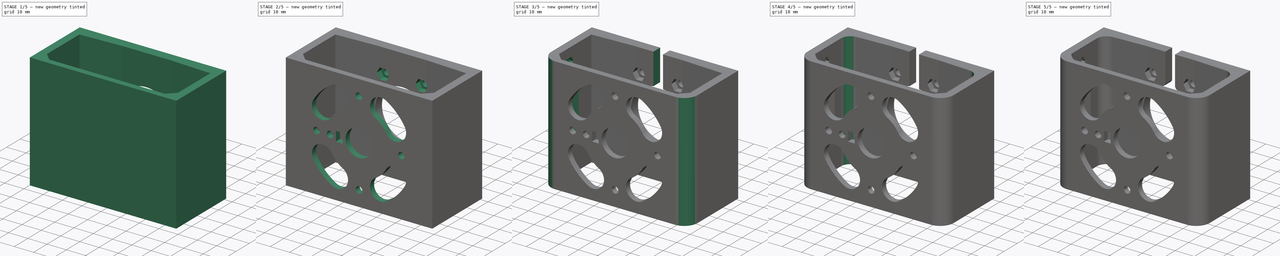
[diagram: build sequence overview — one tinted view per stage of 5, left to right]
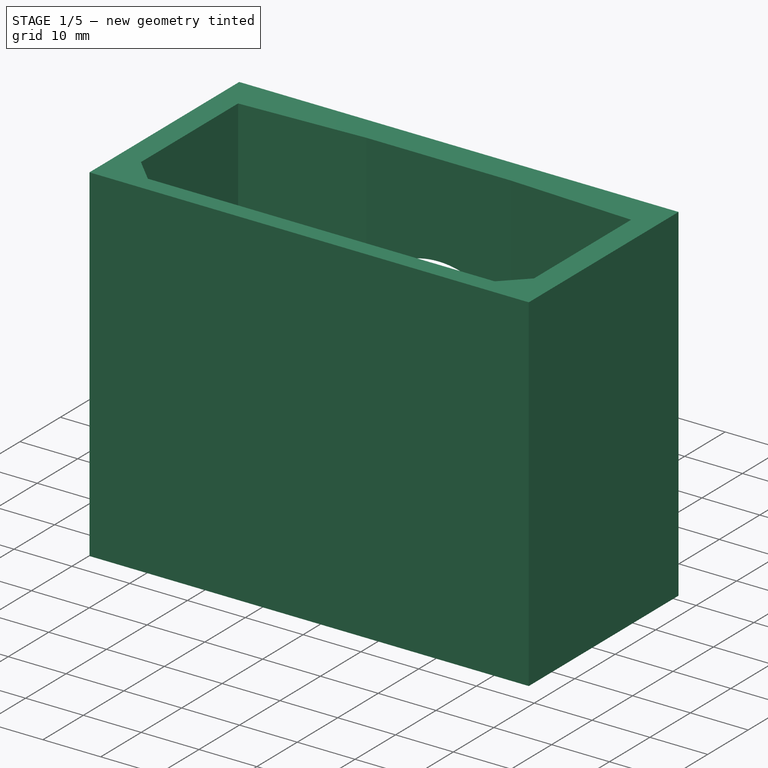
[diagram: stage 1 of 5 — iso view after this stage's code; geometry added in this stage tinted green]
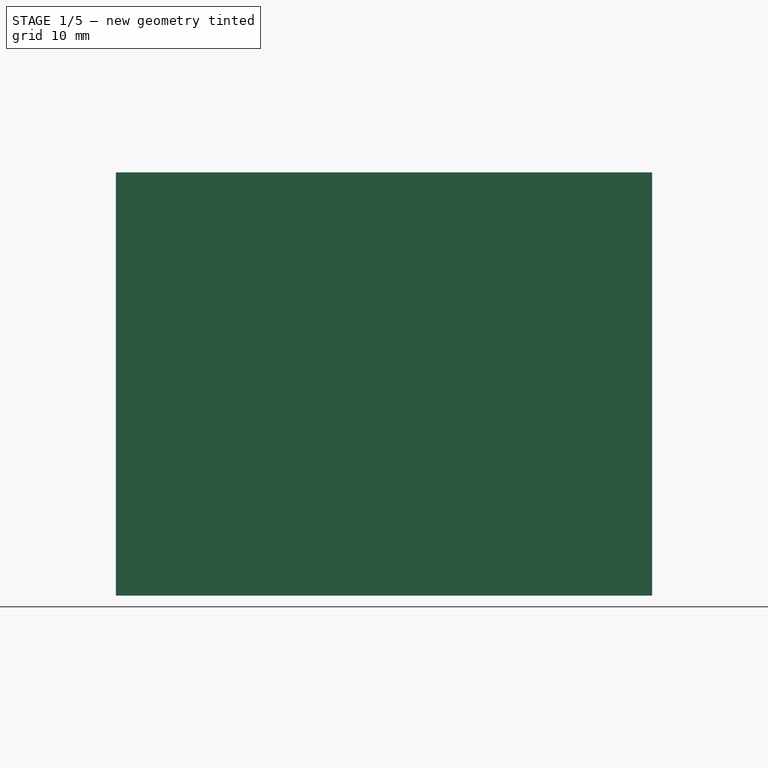
[diagram: stage 1 of 5 — front view after this stage's code; geometry added in this stage tinted green]
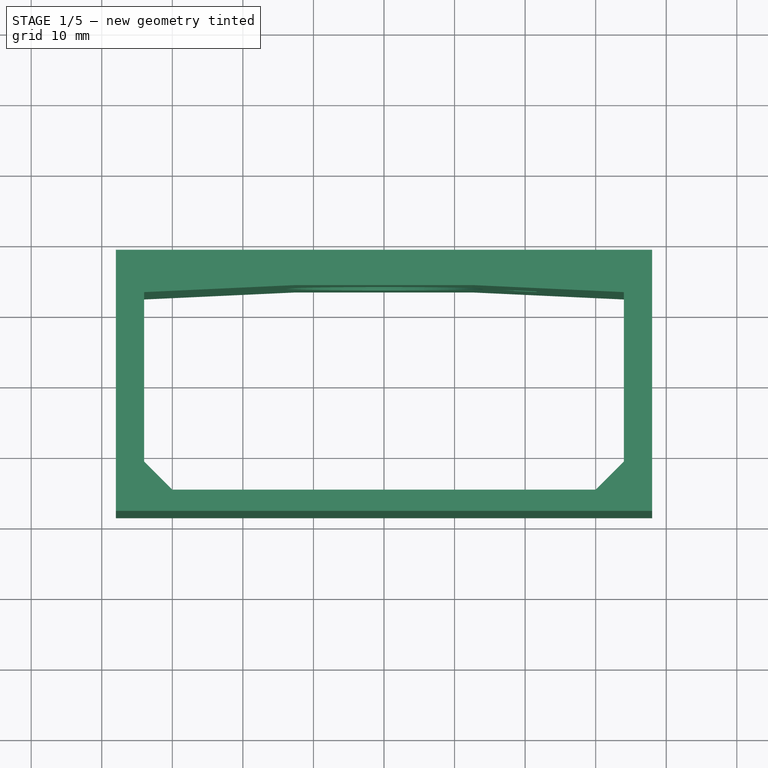
[diagram: stage 1 of 5 — top view after this stage's code; geometry added in this stage tinted green]
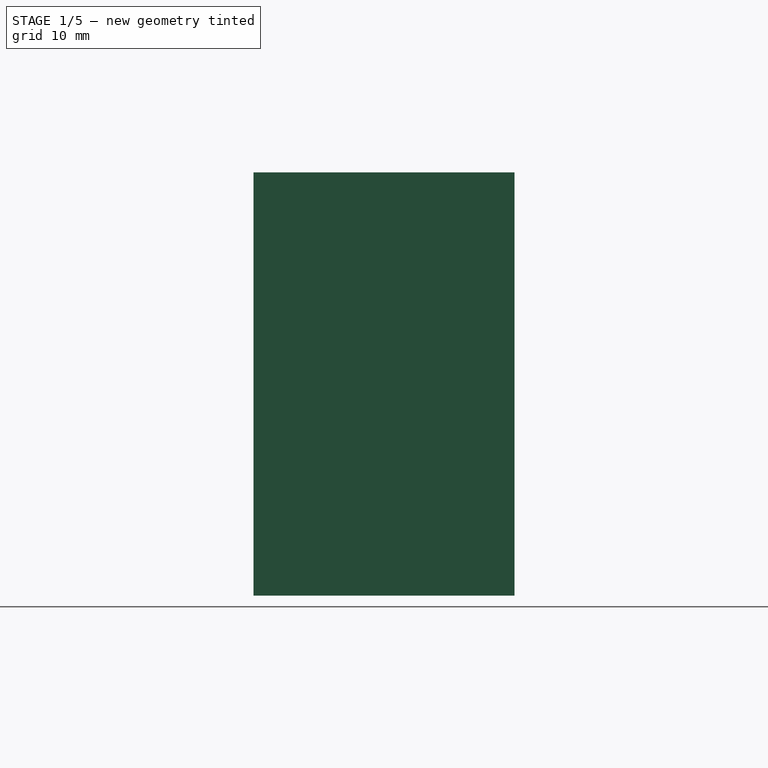
[diagram: stage 1 of 5 — right view after this stage's code; geometry added in this stage tinted green]
FCSTD DOCUMENT  (FreeCAD 0.16R6706 (Git))
Label: MotorMountMT5208V2
License: All rights reserved
LicenseURL: http://en.wikipedia.org/wiki/All_rights_reserved
objects: PartDesign::Fillet×10, Sketcher::SketchObject×9, PartDesign::Pocket×7, PartDesign::Pad×2, PartDesign::PolarPattern×2
note: 39 computed .brp shape members not serialized (recipe doc carries the construction recipe); baked Part::Feature solids carry a one-line shape summary decoded from their .brp

FEATURE [Sketcher::SketchObject] Sketch
  sketch-geometry (14):
    g0: LineSegment StartX=38 StartY=18.5 StartZ=0 EndX=38 EndY=-18.5 EndZ=0
    g1: LineSegment StartX=38 StartY=-18.5 StartZ=0 EndX=-38 EndY=-18.5 EndZ=0
    g2: LineSegment StartX=-38 StartY=-18.5 StartZ=0 EndX=-38 EndY=18.5 EndZ=0
    g3: LineSegment StartX=-34 StartY=-11.5 StartZ=0 EndX=-30 EndY=-15.5 EndZ=0
    g4: LineSegment StartX=-30 StartY=-15.5 StartZ=0 EndX=30 EndY=-15.5 EndZ=0
    g5: LineSegment StartX=30 StartY=-15.5 StartZ=0 EndX=34 EndY=-11.5 EndZ=0
    g6: LineSegment StartX=34 StartY=-11.5 StartZ=0 EndX=34 EndY=12.5 EndZ=0
    g7: LineSegment StartX=34 StartY=12.5 StartZ=0 EndX=12.5 EndY=13.5 EndZ=0
    g8: LineSegment StartX=-12.5 StartY=13.5 StartZ=0 EndX=-34 EndY=12.5 EndZ=0
    g9: LineSegment StartX=-34 StartY=12.5 StartZ=0 EndX=-34 EndY=-11.5 EndZ=0
    g10: LineSegment [constr] StartX=-34 StartY=12.5 StartZ=0 EndX=34 EndY=12.5 EndZ=0
    g11: LineSegment StartX=-12.5 StartY=13.5 StartZ=0 EndX=12.5 EndY=13.5 EndZ=0
    g12: LineSegment StartX=-38 StartY=18.5 StartZ=0 EndX=38 EndY=18.5 EndZ=0
    g13: LineSegment [constr] StartX=-34 StartY=12 StartZ=0 EndX=34 EndY=12 EndZ=0
  constraints (41):
    c: Coincident(g0,g1)
    c: Coincident(g1,g2)
    c: Horizontal(g1)
    c: Vertical(g0)
    c: Vertical(g2)
    c: Coincident(g3,g4)
    c: Horizontal(g4)
    c: Coincident(g4,g5)
    c: Coincident(g5,g6)
    c: Vertical(g6)
    c: Coincident(g6,g7)
    c: Coincident(g8,g9)
    c: Coincident(g9,g3)
    c: Vertical(g9)
    c: Symmetric(g1,g0,g-1)
    c: Symmetric(g3,g4,g-2)
    c: Symmetric(g3,g5,g-2)
    c: Symmetric(g7,g8,g-2)
    c: DistanceX(g3,g4) = 60
    c: DistanceY(g4,g5) = 4
    c: DistanceX(g3,g5) = 68
    c: DistanceY(g1,g3) = 3
    c: Coincident(g10,g8)
    c: Coincident(g10,g6)
    c: Horizontal(g10)
    c: Coincident(g11,g8)
    c: Coincident(g11,g7)
    c: DistanceX(g1,g0) = 76
    c: DistanceX(g7,g8) = -25
    c: Coincident(g12,g2)
    c: Coincident(g12,g0)
    c: Horizontal(g12)
    c: PointOnObject(g13,g9)
    c: PointOnObject(g13,g6)
    c: Horizontal(g13)
    c: DistanceY(g4,g13) = 27.5
    c: DistanceY(g13,g0) = 6.5
    c: DistanceY(g8,g2) = 5
    c: DistanceY(g3,g8) = 28
    c: DistanceY(g1,g-1) = 18.5
    c: DistanceX(g2,g-1) = 38
FEATURE [PartDesign::Pad] Pad
  Length = 60
  Length2 = 100
  Midplane = true
  Sketch = -> Sketch
  Type = 0
FEATURE [Sketcher::SketchObject] Sketch020  label="GearAppature"
  Placement = pos=(0,18.5,0) rot=(0,0.707107,0.707107;3.14159rad)
  Support = -> Pad [Face4]
  sketch-geometry (10):
    g0: LineSegment [constr] StartX=-17.5 StartY=10 StartZ=0 EndX=17.5 EndY=10 EndZ=0
    g1: LineSegment [constr] StartX=17.5 StartY=10 StartZ=0 EndX=17.5 EndY=-10 EndZ=0
    g2: LineSegment [constr] StartX=17.5 StartY=-10 StartZ=0 EndX=-17.5 EndY=-10 EndZ=0
    g3: LineSegment [constr] StartX=-17.5 StartY=-10 StartZ=0 EndX=-17.5 EndY=10 EndZ=0
    g4: Circle [constr] CenterX=-17.5 CenterY=10 CenterZ=0 NormalX=0 NormalY=0 NormalZ=1 Radius=1.7
    g5: Circle [constr] CenterX=-17.5 CenterY=-10 CenterZ=0 NormalX=0 NormalY=0 NormalZ=1 Radius=1.7
    g6: Circle [constr] CenterX=17.5 CenterY=10 CenterZ=0 NormalX=0 NormalY=0 NormalZ=1 Radius=1.7
    g7: Circle [constr] CenterX=17.5 CenterY=-10 CenterZ=0 NormalX=0 NormalY=0 NormalZ=1 Radius=1.7
    g8: Circle [constr] CenterX=0 CenterY=0 CenterZ=0 NormalX=0 NormalY=0 NormalZ=1 Radius=20.1556
    g9: Circle CenterX=0 CenterY=0 CenterZ=0 NormalX=0 NormalY=0 NormalZ=1 Radius=14
  constraints (24):
    c: Coincident(g0,g1)
    c: Coincident(g1,g2)
    c: Coincident(g2,g3)
    c: Coincident(g3,g0)
    c: Horizontal(g0)
    c: Horizontal(g2)
    c: Vertical(g1)
    c: Vertical(g3)
    c: Coincident(g4,g0)
    c: Coincident(g6,g0)
    c: Coincident(g7,g1)
    c: Radius(g7) = 1.7
    c: Equal(g7,g6)
    c: Equal(g7,g4)
    c: Equal(g7,g5)
    c: Coincident(g5,g2)
    c: PointOnObject(g0,g8)
    c: PointOnObject(g2,g8)
    c: PointOnObject(g0,g8)
    c: Coincident(g8,g-1)
    c: DistanceY(g0,g2) = -20
    c: DistanceX(g0,g0) = 35
    c: Coincident(g9,g-1)
    c: Radius(g9) = 14
FEATURE [PartDesign::Pocket] Pocket
  Length = 8
  Sketch = -> Sketch020
  Type = 0
FEATURE [Sketcher::SketchObject] Sketch026
  Placement = pos=(0,13.5,0) rot=(1,0,0;1.5708rad)
  Support = -> Pocket [Face16]
  sketch-geometry (1):
    g0: Circle CenterX=20 CenterY=0 CenterZ=0 NormalX=0 NormalY=0 NormalZ=1 Radius=1.7
  constraints (3):
    c: PointOnObject(g0,g-1)
    c: DistanceX(g-1,g0) = 20
    c: Radius(g0) = 1.7
FEATURE [PartDesign::Pad] Pad001
  Length = 2
  Length2 = 100
  Sketch = -> Sketch026
  Type = 0
FEATURE [Sketcher::SketchObject] Sketch021  label="MountingNuts"
  Placement = pos=(0,11.5,0) rot=(1,0,0;1.5708rad)
  Support = -> Pad001 [Face18]
  sketch-geometry (9):
    g0: Circle [constr] CenterX=0 CenterY=0 CenterZ=0 NormalX=0 NormalY=0 NormalZ=1 Radius=20
    g1: Circle [constr] CenterX=0 CenterY=0 CenterZ=0 NormalX=0 NormalY=0 NormalZ=1 Radius=14
    g2: LineSegment StartX=18.3834 StartY=2.8 StartZ=0 EndX=16.7668 EndY=0 EndZ=0
    g3: LineSegment StartX=16.7668 StartY=0 StartZ=0 EndX=18.3834 EndY=-2.8 EndZ=0
    g4: LineSegment StartX=18.3834 StartY=-2.8 StartZ=0 EndX=21.6166 EndY=-2.8 EndZ=0
    g5: LineSegment StartX=21.6166 StartY=-2.8 StartZ=0 EndX=23.2332 EndY=0 EndZ=0
    g6: LineSegment StartX=23.2332 StartY=0 StartZ=0 EndX=21.6166 EndY=2.8 EndZ=0
    g7: LineSegment StartX=21.6166 StartY=2.8 StartZ=0 EndX=18.3834 EndY=2.8 EndZ=0
    g8: Circle [constr] CenterX=20 CenterY=0 CenterZ=0 NormalX=0 NormalY=0 NormalZ=1 Radius=3.23316
  constraints (21):
    c: PointOnObject(g8,g0)
    c: Coincident(g0,g-1)
    c: Coincident(g1,g-1)
    c: Radius(g1) = 14
    c: Coincident(g2,g3)
    c: Coincident(g3,g4)
    c: Coincident(g4,g5)
    c: Coincident(g5,g6)
    c: Coincident(g6,g7)
    c: Coincident(g7,g2)
    c: Equal(g2, g3-g7) x5
    c: PointOnObject(g2,g8)
    c: PointOnObject(g3,g8)
    c: PointOnObject(g4,g8)
    c: PointOnObject(g5,g8)
    c: PointOnObject(g6,g8)
    c: PointOnObject(g7,g8)
    c: Horizontal(g4)
    c: PointOnObject(g8,g-1)
    c: Radius(g0) = 20
    c: DistanceY(g3,g2) = 5.6
FEATURE [PartDesign::Pocket] Pocket001
  Length = 5
  Sketch = -> Sketch021
  Type = 0
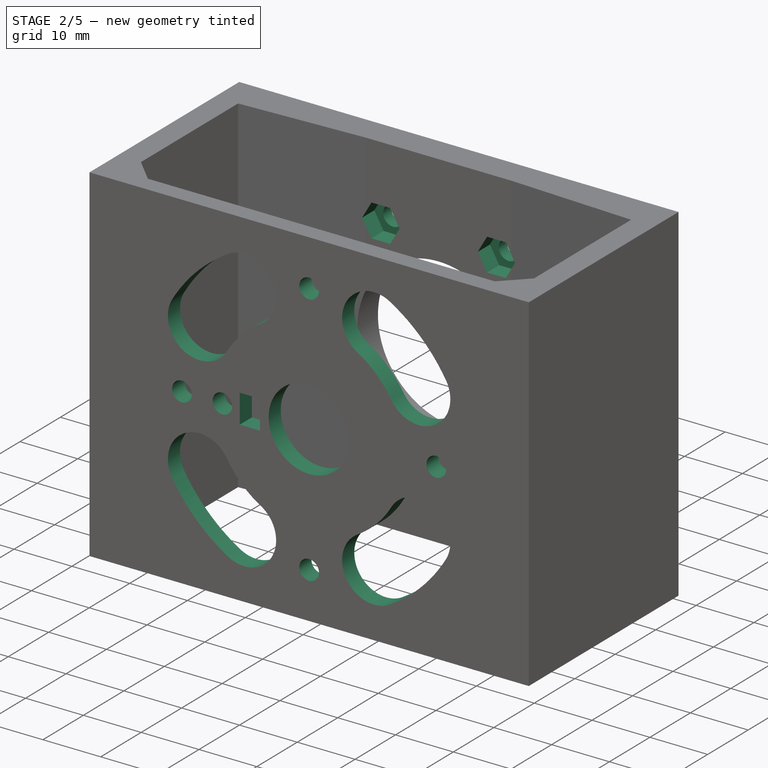
[diagram: stage 2 of 5 — iso view after this stage's code; geometry added in this stage tinted green]
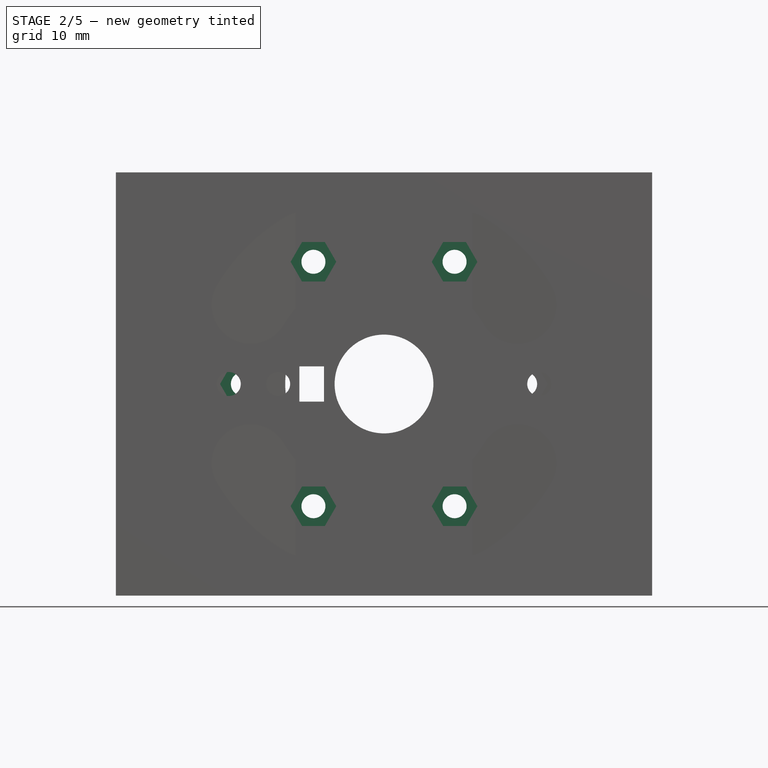
[diagram: stage 2 of 5 — front view after this stage's code; geometry added in this stage tinted green]
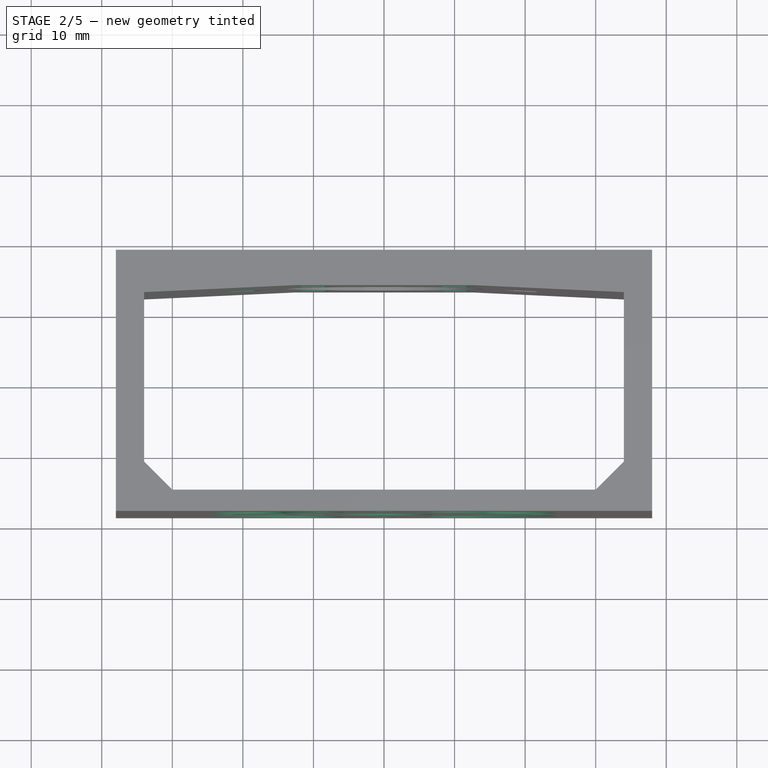
[diagram: stage 2 of 5 — top view after this stage's code; geometry added in this stage tinted green]
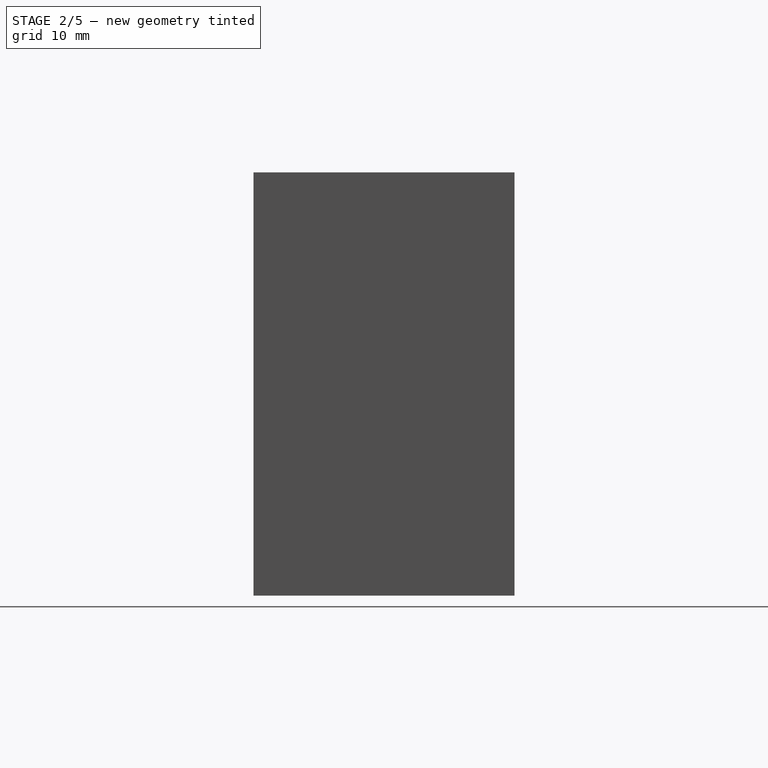
[diagram: stage 2 of 5 — right view after this stage's code; geometry added in this stage tinted green]
FEATURE [PartDesign::PolarPattern] PolarPattern
  Angle = 360
  Axis = -> Sketch021 [N_Axis]
  Occurrences = 6
  Originals = -> [Pocket001]
FEATURE [Sketcher::SketchObject] Sketch025
  Placement = pos=(0,13.5,0) rot=(1,0,0;1.5708rad)
  Support = -> PolarPattern [Face16]
  sketch-geometry (1):
    g0: Circle CenterX=20 CenterY=0 CenterZ=0 NormalX=0 NormalY=0 NormalZ=1 Radius=1.7
  constraints (3):
    c: PointOnObject(g0,g-1)
    c: Radius(g0) = 1.7
    c: DistanceX(g-1,g0) = 20
FEATURE [PartDesign::Pocket] Pocket005
  Length = 5
  Sketch = -> Sketch025
  Type = 1
FEATURE [PartDesign::PolarPattern] PolarPattern001
  Angle = 360
  Axis = -> Sketch025 [N_Axis]
  Occurrences = 6
  Originals = -> [Pocket005]
FEATURE [Sketcher::SketchObject] Sketch022  label="MotorMountScrewsAndVents"
  Placement = pos=(0,-18.5,0) rot=(1,0,0;1.5708rad)
  Support = -> PolarPattern001 [Face3]
  sketch-geometry (46):
    g0: Circle CenterX=0 CenterY=22 CenterZ=0 NormalX=0 NormalY=0 NormalZ=1 Radius=1.7
    g1: Circle CenterX=0 CenterY=-22 CenterZ=0 NormalX=0 NormalY=0 NormalZ=1 Radius=1.7
    g2: Circle CenterX=-22 CenterY=0 CenterZ=0 NormalX=0 NormalY=0 NormalZ=1 Radius=1.7
    g3: Circle CenterX=22 CenterY=0 CenterZ=0 NormalX=0 NormalY=0 NormalZ=1 Radius=1.7
    g4: Circle [constr] CenterX=-8.83883 CenterY=8.83883 CenterZ=0 NormalX=0 NormalY=0 NormalZ=1 Radius=1.7
    g5: Circle [constr] CenterX=8.83883 CenterY=8.83883 CenterZ=0 NormalX=0 NormalY=0 NormalZ=1 Radius=1.7
    g6: Circle [constr] CenterX=8.83883 CenterY=-8.83883 CenterZ=0 NormalX=0 NormalY=0 NormalZ=1 Radius=1.7
    g7: Circle [constr] CenterX=-8.83883 CenterY=-8.83883 CenterZ=0 NormalX=0 NormalY=0 NormalZ=1 Radius=1.7
    g8: Circle [constr] CenterX=0 CenterY=0 CenterZ=0 NormalX=0 NormalY=0 NormalZ=1 Radius=12.5
    g9: LineSegment [constr] StartX=-8.83883 StartY=8.83883 StartZ=0 EndX=8.83883 EndY=8.83883 EndZ=0
    g10: LineSegment [constr] StartX=8.83883 StartY=8.83883 StartZ=0 EndX=8.83883 EndY=-8.83883 EndZ=0
    g11: LineSegment [constr] StartX=8.83883 StartY=-8.83883 StartZ=0 EndX=-8.83883 EndY=-8.83883 EndZ=0
    g12: LineSegment [constr] StartX=-8.83883 StartY=-8.83883 StartZ=0 EndX=-8.83883 EndY=8.83883 EndZ=0
    g13: Circle CenterX=0 CenterY=0 CenterZ=0 NormalX=0 NormalY=0 NormalZ=1 Radius=7
    g14: Circle [constr] CenterX=0 CenterY=0 CenterZ=0 NormalX=0 NormalY=0 NormalZ=1 Radius=22
    g15: ArcOfCircle CenterX=-18.9288 CenterY=11.2116 CenterZ=0 NormalX=0 NormalY=0 NormalZ=1 Radius=5.5 StartAngle=2.60685 EndAngle=5.74844
    g16: ArcOfCircle CenterX=-11.2116 CenterY=18.9288 CenterZ=0 NormalX=0 NormalY=0 NormalZ=1 Radius=5.5 StartAngle=5.24713 EndAngle=8.38872
    g17: GeomPoint [constr] X=-15.5563 Y=15.5563 Z=0
    g18: ArcOfCircle CenterX=0 CenterY=0 CenterZ=0 NormalX=0 NormalY=0 NormalZ=1 Radius=27.5 StartAngle=2.10554 EndAngle=2.60685
    g19: ArcOfCircle CenterX=0 CenterY=0 CenterZ=0 NormalX=0 NormalY=0 NormalZ=1 Radius=16.5 StartAngle=2.10554 EndAngle=2.60685
    g20: LineSegment [constr] StartX=0 StartY=0 StartZ=0 EndX=-14.0145 EndY=23.661 EndZ=0
    g21: LineSegment [constr] StartX=0 StartY=0 StartZ=0 EndX=-23.661 EndY=14.0145 EndZ=0
    g22: LineSegment [constr] StartX=0 StartY=0 StartZ=0 EndX=-15.5563 EndY=15.5563 EndZ=0
    g23: LineSegment [constr] StartX=0 StartY=0 StartZ=0 EndX=23.661 EndY=-14.0145 EndZ=0
    g24: ArcOfCircle CenterX=0 CenterY=0 CenterZ=0 NormalX=0 NormalY=0 NormalZ=1 Radius=16.5 StartAngle=5.24713 EndAngle=5.74844
    g25: ArcOfCircle CenterX=11.2116 CenterY=-18.9288 CenterZ=0 NormalX=0 NormalY=0 NormalZ=1 Radius=5.5 StartAngle=2.10554 EndAngle=5.24713
    g26: ArcOfCircle CenterX=0 CenterY=0 CenterZ=0 NormalX=0 NormalY=0 NormalZ=1 Radius=27.5 StartAngle=5.24713 EndAngle=5.74844
    g27: ArcOfCircle CenterX=18.9288 CenterY=-11.2116 CenterZ=0 NormalX=0 NormalY=0 NormalZ=1 Radius=5.5 StartAngle=5.74844 EndAngle=8.89004
    g28: LineSegment [constr] StartX=0 StartY=0 StartZ=0 EndX=14.0145 EndY=-23.661 EndZ=0
    g29: LineSegment [constr] StartX=0 StartY=0 StartZ=0 EndX=23.661 EndY=14.0145 EndZ=0
    g30: LineSegment [constr] StartX=0 StartY=0 StartZ=0 EndX=14.0145 EndY=23.661 EndZ=0
    g31: ArcOfCircle CenterX=0 CenterY=0 CenterZ=0 NormalX=0 NormalY=0 NormalZ=1 Radius=27.5 StartAngle=0.534743 EndAngle=1.03605
    g32: ArcOfCircle CenterX=18.9288 CenterY=11.2116 CenterZ=0 NormalX=0 NormalY=0 NormalZ=1 Radius=5.5 StartAngle=3.67634 EndAngle=6.81793
    g33: ArcOfCircle CenterX=0 CenterY=0 CenterZ=0 NormalX=0 NormalY=0 NormalZ=1 Radius=16.5 StartAngle=0.534743 EndAngle=1.03605
    g34: ArcOfCircle CenterX=11.2116 CenterY=18.9288 CenterZ=0 NormalX=0 NormalY=0 NormalZ=1 Radius=5.5 StartAngle=1.03605 EndAngle=4.17765
    g35: ArcOfCircle CenterX=-11.2116 CenterY=-18.9288 CenterZ=0 NormalX=0 NormalY=0 NormalZ=1 Radius=5.5 StartAngle=4.17765 EndAngle=7.31924
    g36: LineSegment [constr] StartX=0 StartY=0 StartZ=0 EndX=-14.0145 EndY=-23.661 EndZ=0
    g37: ArcOfCircle CenterX=0 CenterY=0 CenterZ=0 NormalX=0 NormalY=0 NormalZ=1 Radius=27.5 StartAngle=3.67634 EndAngle=4.17765
    g38: ArcOfCircle CenterX=0 CenterY=0 CenterZ=0 NormalX=0 NormalY=0 NormalZ=1 Radius=16.5 StartAngle=3.67634 EndAngle=4.17765
    g39: ArcOfCircle CenterX=-18.9288 CenterY=-11.2116 CenterZ=0 NormalX=0 NormalY=0 NormalZ=1 Radius=5.5 StartAngle=0.534743 EndAngle=3.67634
    g40: LineSegment [constr] StartX=0 StartY=0 StartZ=0 EndX=-23.661 EndY=-14.0145 EndZ=0
    g41: Circle CenterX=-15 CenterY=0 CenterZ=0 NormalX=0 NormalY=0 NormalZ=1 Radius=1.7
    g42: LineSegment StartX=-12 StartY=2.5 StartZ=0 EndX=-8.5 EndY=2.5 EndZ=0
    g43: LineSegment StartX=-8.5 StartY=2.5 StartZ=0 EndX=-8.5 EndY=-2.5 EndZ=0
    g44: LineSegment StartX=-8.5 StartY=-2.5 StartZ=0 EndX=-12 EndY=-2.5 EndZ=0
    g45: LineSegment StartX=-12 StartY=-2.5 StartZ=0 EndX=-12 EndY=2.5 EndZ=0
  constraints (133):
    c: PointOnObject(g1,g-2)
    c: PointOnObject(g2,g-1)
    c: PointOnObject(g3,g-1)
    c: Symmetric(g2,g3,g-1)
    c: Symmetric(g1,g0,g-1)
    c: Radius(g2) = 1.7
    c: Equal(g2,g1)
    c: Equal(g2,g3)
    c: Equal(g2,g0)
    c: Radius(g4) = 1.7
    c: Equal(g4,g7)
    c: Equal(g4,g6)
    c: Equal(g4,g5)
    c: Coincident(g8,g-1)
    c: Radius(g8) = 12.5
    c: PointOnObject(g6,g8)
    c: PointOnObject(g7,g8)
    c: PointOnObject(g5,g8)
    c: PointOnObject(g4,g8)
    c: Coincident(g9,g4)
    c: Coincident(g9,g5)
    c: Coincident(g10,g5)
    c: Coincident(g10,g6)
    c: Vertical(g10)
    c: Coincident(g11,g6)
    c: Coincident(g11,g7)
    c: Coincident(g12,g7)
    c: Coincident(g12,g4)
    c: Horizontal(g11)
    c: Vertical(g12)
    c: Coincident(g13,g-1)
    c: Radius(g13) = 7
    c: Coincident(g14,g-1)
    c: Radius(g14) = 22
    c: PointOnObject(g0,g14)
    c: PointOnObject(g2,g14)
    c: Equal(g12,g9)
    c: PointOnObject(g16,g14)
    c: Radius(g15) = 5.5
    c: PointOnObject(g17,g14)
    c: PointOnObject(g17,g16)
    c: PointOnObject(g17,g15)
    c: Coincident(g18,g-1)
    c: Coincident(g19,g-1)
    c: Coincident(g16,g18)
    c: Coincident(g15,g19)
    c: Coincident(g16,g19)
    c: Coincident(g18,g15)
    c: Coincident(g15,g19)
    c: Coincident(g20,g-1)
    c: Coincident(g20,g16)
    c: Coincident(g21,g-1)
    c: PointOnObject(g15,g21)
    c: PointOnObject(g15,g21)
    c: PointOnObject(g16,g20)
    c: PointOnObject(g16,g20)
    c: Coincident(g21,g15)
    c: Coincident(g22,g-1)
    c: Coincident(g22,g17)
    c: PointOnObject(g4,g22)
    c: Radius(g27) = 5.5
    c: Equal(g27,g25)
    c: Coincident(g25,g26)
    c: Coincident(g27,g24)
    c: Coincident(g25,g24)
    c: Coincident(g26,g27)
    c: Coincident(g27,g24)
    c: Coincident(g28,g25)
    c: PointOnObject(g27,g23)
    c: PointOnObject(g27,g23)
    c: PointOnObject(g25,g28)
    c: PointOnObject(g25,g28)
    c: Coincident(g23,g27)
    c: Coincident(g26,g24)
    c: Coincident(g26,g28)
    c: Coincident(g26,g23)
    c: Coincident(g26,g-1)
    c: PointOnObject(g25,g14)
    c: Parallel(g20,g28)
    c: Parallel(g21,g23)
    c: Radius(g32) = 5.5
    c: Coincident(g34,g31)
    c: Coincident(g32,g33)
    c: Coincident(g34,g33)
    c: Coincident(g31,g32)
    c: Coincident(g32,g33)
    c: Coincident(g30,g34)
    c: PointOnObject(g32,g29)
    c: PointOnObject(g32,g29)
    c: PointOnObject(g34,g30)
    c: PointOnObject(g34,g30)
    c: Coincident(g29,g32)
    c: Coincident(g29,g33)
    c: Coincident(g29,g31)
    c: Coincident(g29,g30)
    c: Coincident(g29,g-1)
    c: PointOnObject(g34,g14)
    c: Radius(g39) = 5.5
    c: Coincident(g35,g37)
    c: Coincident(g39,g38)
    c: Coincident(g35,g38)
    c: Coincident(g37,g39)
    c: Coincident(g39,g38)
    c: Coincident(g36,g35)
    c: PointOnObject(g39,g40)
    c: PointOnObject(g39,g40)
    c: PointOnObject(g35,g36)
    c: PointOnObject(g35,g36)
    c: Coincident(g40,g39)
    c: Coincident(g40,g38)
    c: Coincident(g40,g37)
    c: Coincident(g40,g36)
    c: Parallel(g36,g30)
    c: Parallel(g29,g40)
    c: Coincident(g36,g-1)
    c: PointOnObject(g39,g14)
    c: Symmetric(g39,g15,g-1)
    c: Symmetric(g35,g25,g-2)
    c: PointOnObject(g41,g-1)
    c: Equal(g41,g2)
    c: DistanceX(g2,g41) = 7
    c: Coincident(g42,g43)
    c: Coincident(g43,g44)
    c: Coincident(g44,g45)
    c: Coincident(g45,g42)
    c: Horizontal(g42)
    c: Horizontal(g44)
    c: Vertical(g43)
    c: Vertical(g45)
    c: DistanceX(g42,g42) = 3.5
    c: DistanceY(g43,g42) = 5
    c: Symmetric(g44,g42,g-1)
    c: DistanceX(g41,g42) = 3
FEATURE [PartDesign::Pocket] Pocket002
  Length = 5
  Sketch = -> Sketch022
  Type = 0
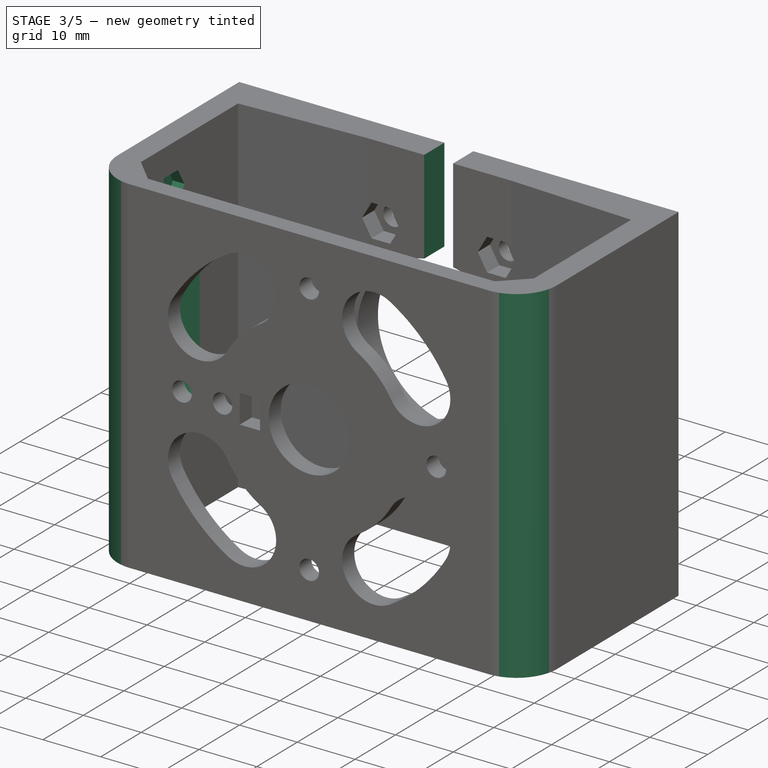
[diagram: stage 3 of 5 — iso view after this stage's code; geometry added in this stage tinted green]
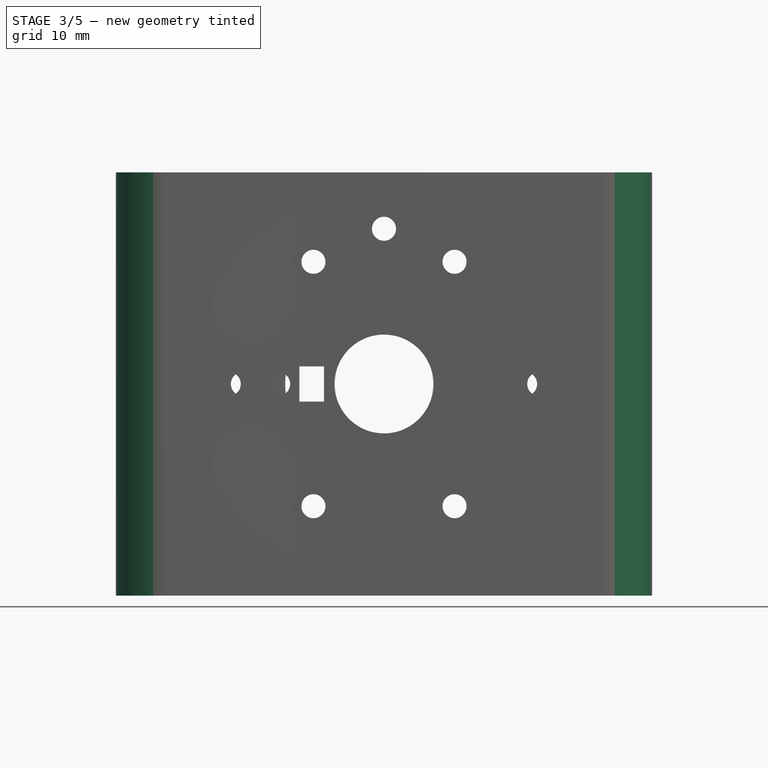
[diagram: stage 3 of 5 — front view after this stage's code; geometry added in this stage tinted green]
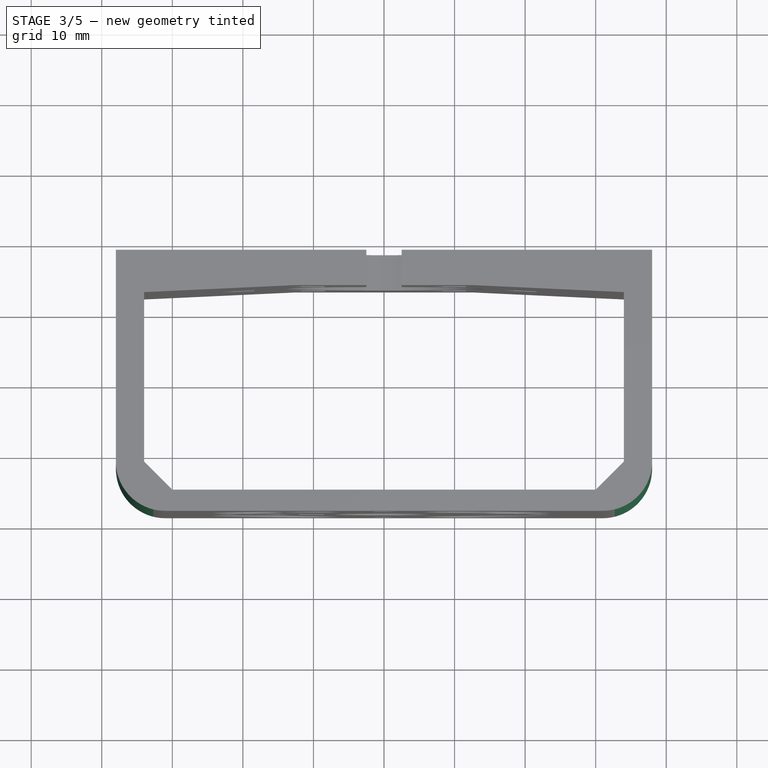
[diagram: stage 3 of 5 — top view after this stage's code; geometry added in this stage tinted green]
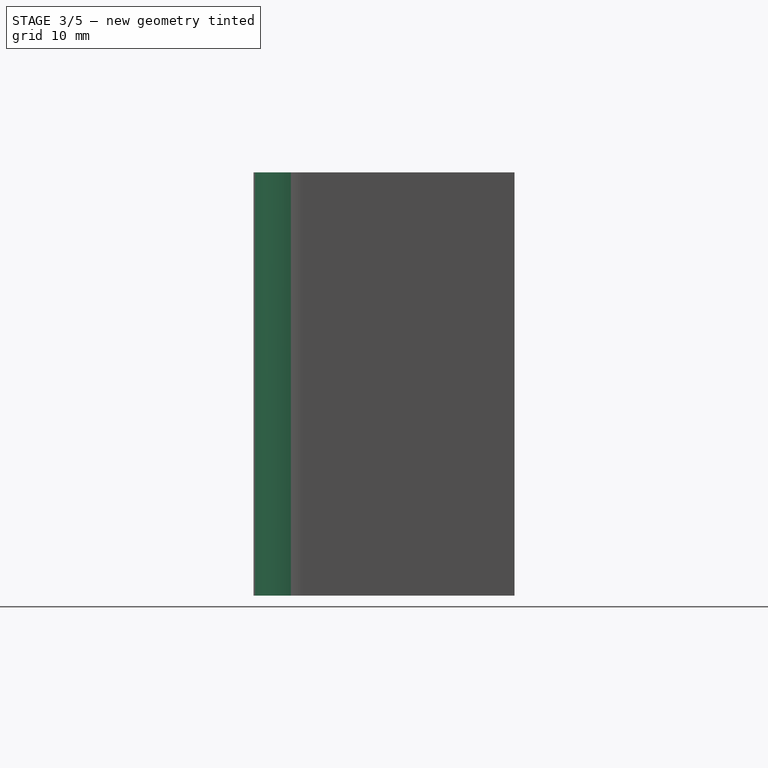
[diagram: stage 3 of 5 — right view after this stage's code; geometry added in this stage tinted green]
FEATURE [Sketcher::SketchObject] Sketch027  label="SlotForShaft"
  Placement = pos=(0,13.5,0) rot=(1,0,0;1.5708rad)
  Support = -> Pocket002 [Face47]
  sketch-geometry (4):
    g0: LineSegment StartX=-2.5 StartY=30 StartZ=0 EndX=2.5 EndY=30 EndZ=0
    g1: LineSegment StartX=2.5 StartY=30 StartZ=0 EndX=2.5 EndY=0 EndZ=0
    g2: LineSegment StartX=2.5 StartY=0 StartZ=0 EndX=-2.5 EndY=0 EndZ=0
    g3: LineSegment StartX=-2.5 StartY=0 StartZ=0 EndX=-2.5 EndY=30 EndZ=0
  constraints (12):
    c: Coincident(g0,g1)
    c: Coincident(g1,g2)
    c: Coincident(g2,g3)
    c: Coincident(g3,g0)
    c: Horizontal(g0)
    c: Horizontal(g2)
    c: Vertical(g1)
    c: Vertical(g3)
    c: Symmetric(g1,g2,g-2)
    c: PointOnObject(g2,g-1)
    c: DistanceY(g1,g0) = 30
    c: DistanceX(g0,g0) = 5
FEATURE [PartDesign::Pocket] Pocket006
  Length = 5
  Sketch = -> Sketch027
  Type = 1
FEATURE [Sketcher::SketchObject] Sketch028  label="HallSensorWindow"
  Placement = pos=(-38,0,0) rot=(0.57735,-0.57735,-0.57735;2.0944rad)
  Support = -> Pocket006 [Face10]
  sketch-geometry (8):
    g0: ArcOfCircle CenterX=4 CenterY=10 CenterZ=0 NormalX=0 NormalY=0 NormalZ=1 Radius=7 StartAngle=0 EndAngle=3.14159
    g1: ArcOfCircle CenterX=4 CenterY=-10 CenterZ=0 NormalX=0 NormalY=0 NormalZ=1 Radius=7 StartAngle=3.14159 EndAngle=6.28319
    g2: LineSegment StartX=-3 StartY=10 StartZ=0 EndX=-3 EndY=-10 EndZ=0
    g3: LineSegment StartX=11 StartY=10 StartZ=0 EndX=11 EndY=-10 EndZ=0
    g4: LineSegment [constr] StartX=4 StartY=10 StartZ=0 EndX=4 EndY=0 EndZ=0
    g5: Circle CenterX=4 CenterY=22.5 CenterZ=0 NormalX=0 NormalY=0 NormalZ=1 Radius=1.6
    g6: Circle CenterX=4 CenterY=-22.5 CenterZ=0 NormalX=0 NormalY=0 NormalZ=1 Radius=1.6
    g7: LineSegment [constr] StartX=4 StartY=22.5 StartZ=0 EndX=4 EndY=-22.5 EndZ=0
  constraints (22):
    c: Tangent(g0,g3) = 1.5708
    c: Tangent(g0,g2) = -1.5708
    c: Tangent(g2,g1) = -1.5708
    c: Tangent(g3,g1) = 1.5708
    c: Vertical(g2)
    c: Equal(g0,g1)
    c: Symmetric(g1,g0,g-1)
    c: DistanceY(g1,g0) = 20
    c: DistanceX(g1,g1) = 14
    c: Coincident(g4,g0)
    c: Vertical(g4)
    c: PointOnObject(g4,g-1)
    c: DistanceX(g-1,g4) = 4
    c: Coincident(g7,g5)
    c: Coincident(g7,g6)
    c: Vertical(g7)
    c: PointOnObject(g1,g7)
    c: Symmetric(g5,g6,g-1)
    c: Radius(g6) = 1.6
    c: Equal(g6,g5)
    c: DistanceY(g6,g5) = 45
    c: DistanceX(g-1,g4) = 4
FEATURE [PartDesign::Pocket] Pocket007
  Length = 5
  Sketch = -> Sketch028
  Type = 0
FEATURE [Sketcher::SketchObject] Sketch029
  Placement = pos=(-34,0,0) rot=(0.57735,0.57735,0.57735;2.0944rad)
  Support = -> Pocket007 [Face44]
  sketch-geometry (15):
    g0: LineSegment StartX=-2.38342 StartY=19.7 StartZ=0 EndX=-0.766838 EndY=22.5 EndZ=0
    g1: LineSegment StartX=-0.766838 StartY=22.5 StartZ=0 EndX=-2.38342 EndY=25.3 EndZ=0
    g2: LineSegment StartX=-2.38342 StartY=25.3 StartZ=0 EndX=-5.61658 EndY=25.3 EndZ=0
    g3: LineSegment StartX=-5.61658 StartY=25.3 StartZ=0 EndX=-7.23316 EndY=22.5 EndZ=0
    g4: LineSegment StartX=-7.23316 StartY=22.5 StartZ=0 EndX=-5.61658 EndY=19.7 EndZ=0
    g5: LineSegment StartX=-5.61658 StartY=19.7 StartZ=0 EndX=-2.38342 EndY=19.7 EndZ=0
    g6: Circle [constr] CenterX=-4 CenterY=22.5 CenterZ=0 NormalX=0 NormalY=0 NormalZ=1 Radius=3.23316
    g7: LineSegment [constr] StartX=-4 StartY=22.5 StartZ=0 EndX=-4 EndY=-22.5 EndZ=0
    g8: LineSegment StartX=-7.23316 StartY=-22.5 StartZ=0 EndX=-5.61658 EndY=-25.3 EndZ=0
    g9: LineSegment StartX=-5.61658 StartY=-25.3 StartZ=0 EndX=-2.38342 EndY=-25.3 EndZ=0
    g10: LineSegment StartX=-2.38342 StartY=-25.3 StartZ=0 EndX=-0.766838 EndY=-22.5 EndZ=0
    g11: LineSegment StartX=-0.766838 StartY=-22.5 StartZ=0 EndX=-2.38342 EndY=-19.7 EndZ=0
    g12: LineSegment StartX=-2.38342 StartY=-19.7 StartZ=0 EndX=-5.61658 EndY=-19.7 EndZ=0
    g13: LineSegment StartX=-5.61658 StartY=-19.7 StartZ=0 EndX=-7.23316 EndY=-22.5 EndZ=0
    g14: Circle [constr] CenterX=-4 CenterY=-22.5 CenterZ=0 NormalX=0 NormalY=0 NormalZ=1 Radius=3.23316
  constraints (36):
    c: Coincident(g0,g1)
    c: Coincident(g1,g2)
    c: Coincident(g2,g3)
    c: Coincident(g3,g4)
    c: Coincident(g4,g5)
    c: Coincident(g5,g0)
    c: Equal(g0, g1-g5) x5
    c: PointOnObject(g0,g6)
    c: PointOnObject(g1,g6)
    c: PointOnObject(g2,g6)
    c: PointOnObject(g3,g6)
    c: PointOnObject(g4,g6)
    c: PointOnObject(g5,g6)
    c: Coincident(g7,g6)
    c: Vertical(g7)
    c: Horizontal(g5)
    c: DistanceY(g0,g1) = 5.6
    c: Coincident(g8,g9)
    c: Coincident(g9,g10)
    c: Coincident(g10,g11)
    c: Coincident(g11,g12)
    c: Coincident(g12,g13)
    c: Coincident(g13,g8)
    c: Equal(g8, g9-g13) x5
    c: PointOnObject(g8,g14)
    c: PointOnObject(g9,g14)
    c: PointOnObject(g10,g14)
    c: PointOnObject(g11,g14)
    c: PointOnObject(g12,g14)
    c: PointOnObject(g13,g14)
    c: Coincident(g14,g7)
    c: Horizontal(g12)
    c: DistanceY(g8,g12) = 5.6
    c: Symmetric(g7,g6,g-1)
    c: DistanceY(g7,g7) = 45
    c: DistanceX(g6,g-1) = 4
FEATURE [PartDesign::Pocket] Pocket008
  Length = 2
  Sketch = -> Sketch029
  Type = 0
FEATURE [PartDesign::Fillet] Fillet
  Base = -> Pocket008 [Edge21]
  Radius = 7
FEATURE [PartDesign::Fillet] Fillet001
  Base = -> Fillet [Edge3]
  Radius = 7
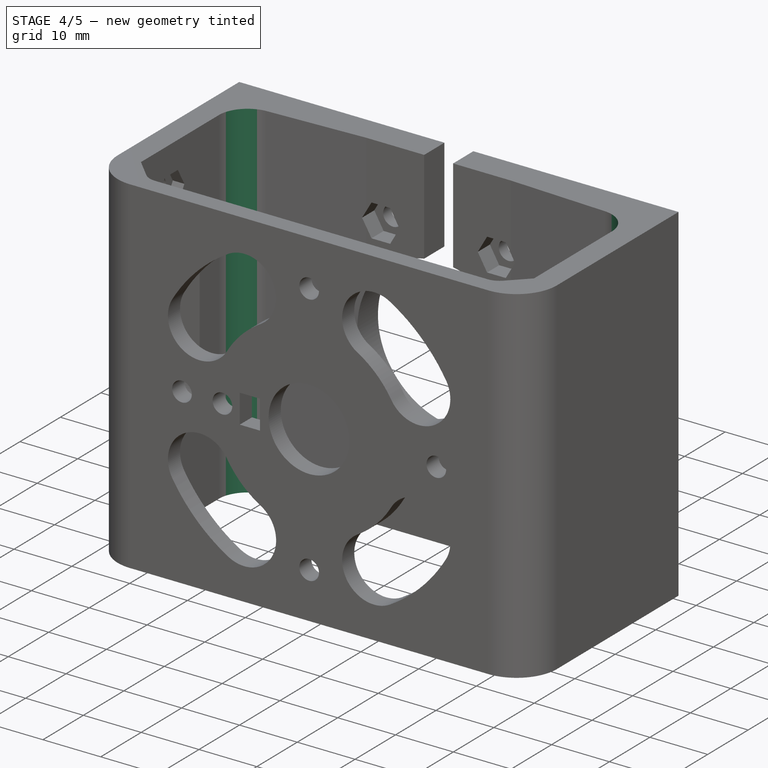
[diagram: stage 4 of 5 — iso view after this stage's code; geometry added in this stage tinted green]
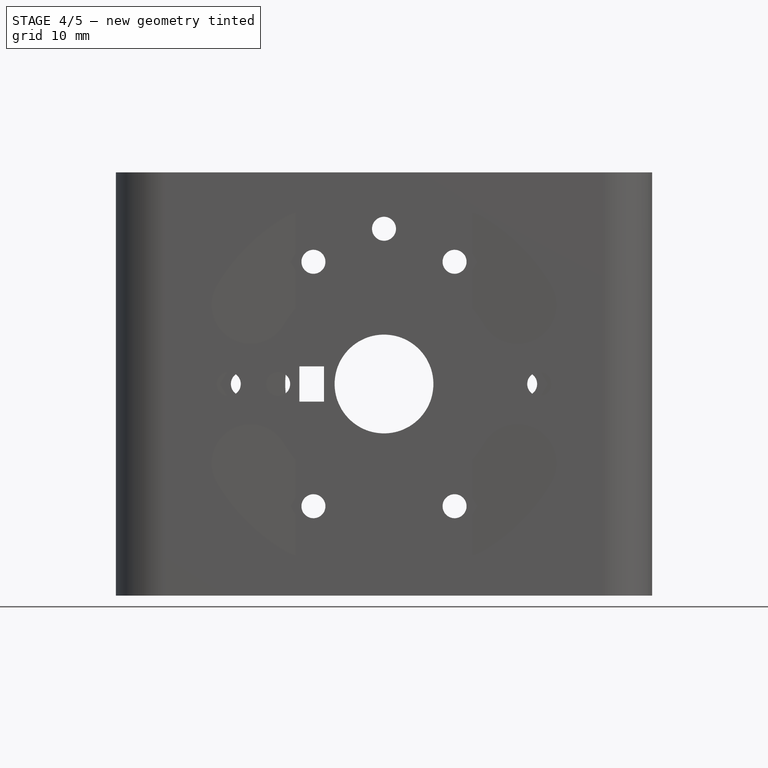
[diagram: stage 4 of 5 — front view after this stage's code; geometry added in this stage tinted green]
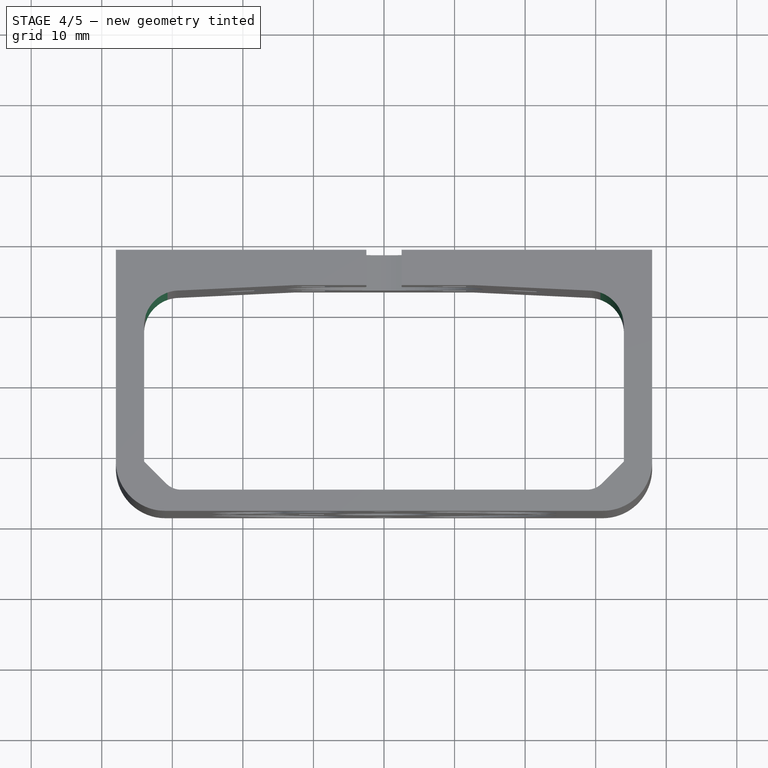
[diagram: stage 4 of 5 — top view after this stage's code; geometry added in this stage tinted green]
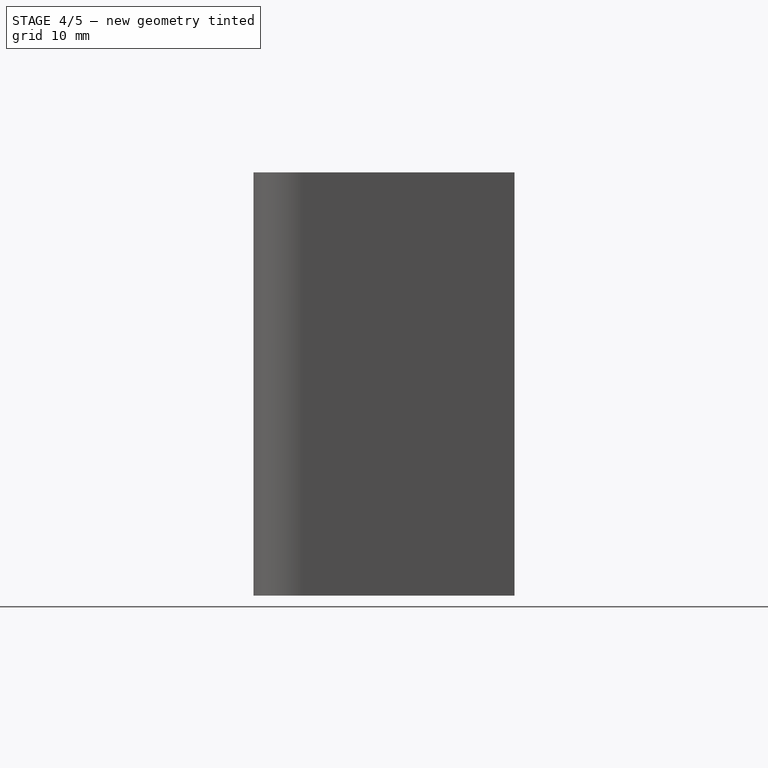
[diagram: stage 4 of 5 — right view after this stage's code; geometry added in this stage tinted green]
FEATURE [PartDesign::Fillet] Fillet002
  Base = -> Fillet001 [Edge133]
  Radius = 5
FEATURE [PartDesign::Fillet] Fillet003
  Base = -> Fillet002 [Edge77]
  Radius = 5
FEATURE [PartDesign::Fillet] Fillet004
  Base = -> Fillet003 [Edge73]
  Radius = 3
FEATURE [PartDesign::Fillet] Fillet005
  Base = -> Fillet004 [Edge19]
  Radius = 3
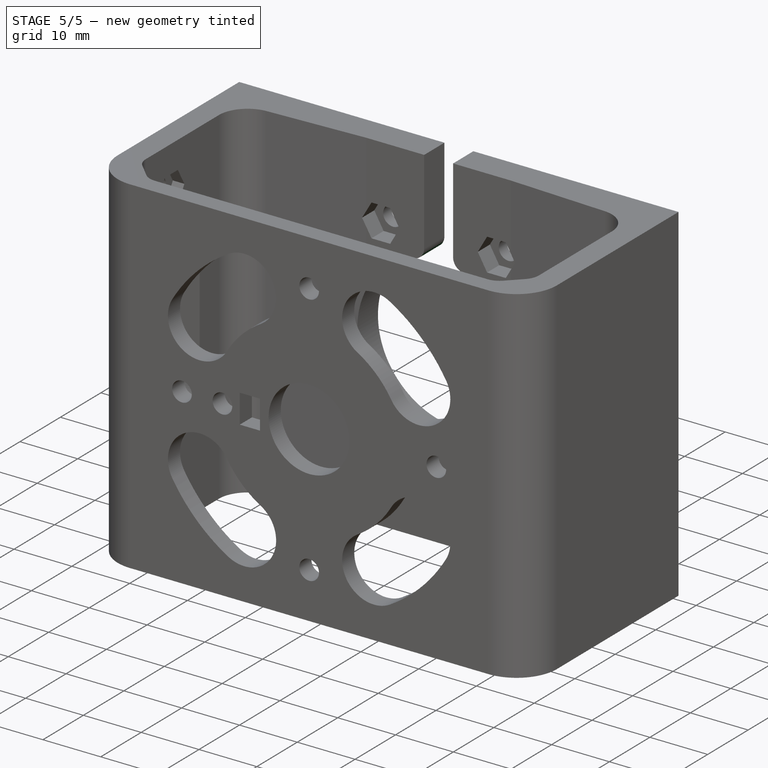
[diagram: stage 5 of 5 — iso view after this stage's code; geometry added in this stage tinted green]
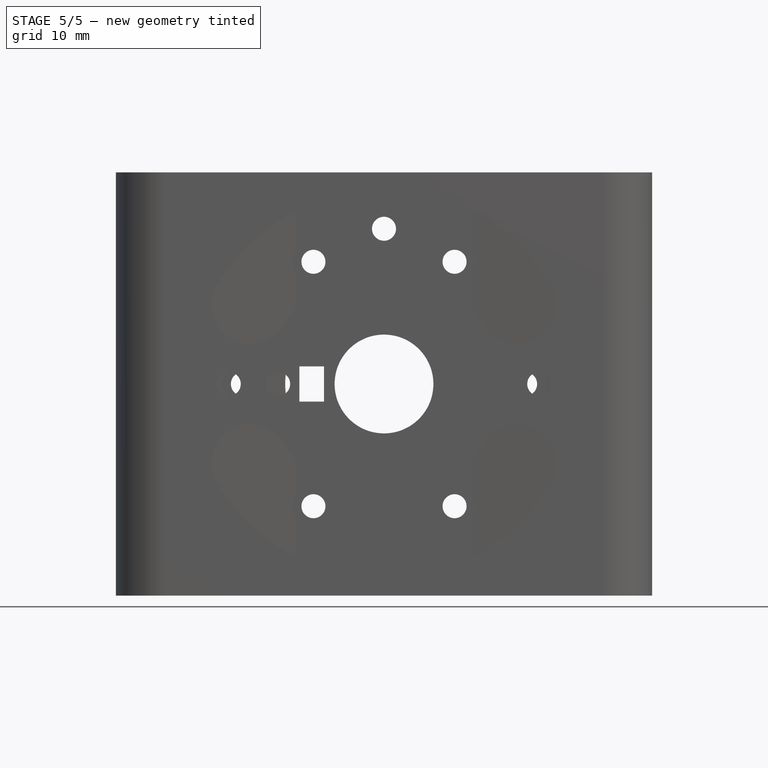
[diagram: stage 5 of 5 — front view after this stage's code; geometry added in this stage tinted green]
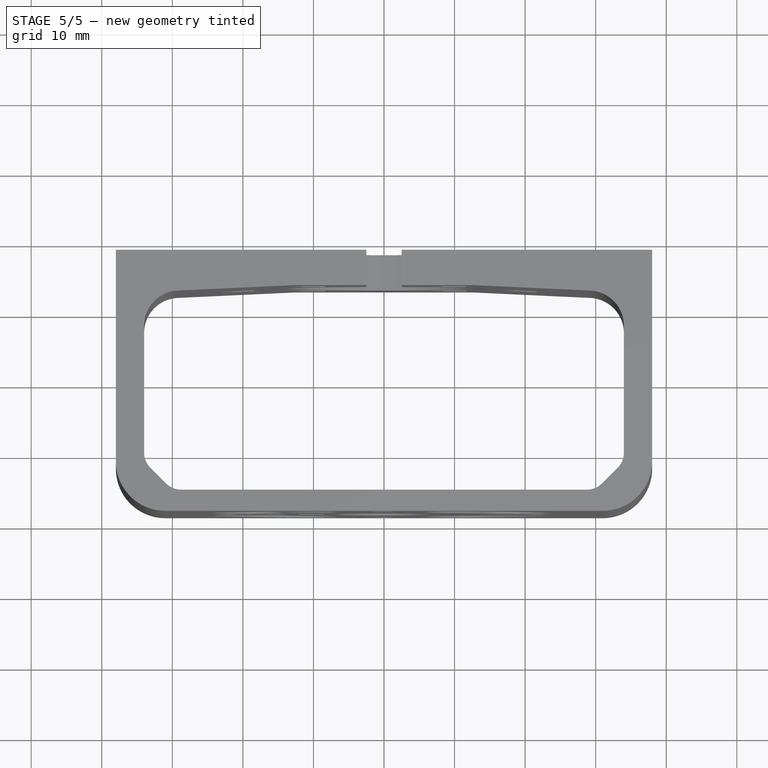
[diagram: stage 5 of 5 — top view after this stage's code; geometry added in this stage tinted green]
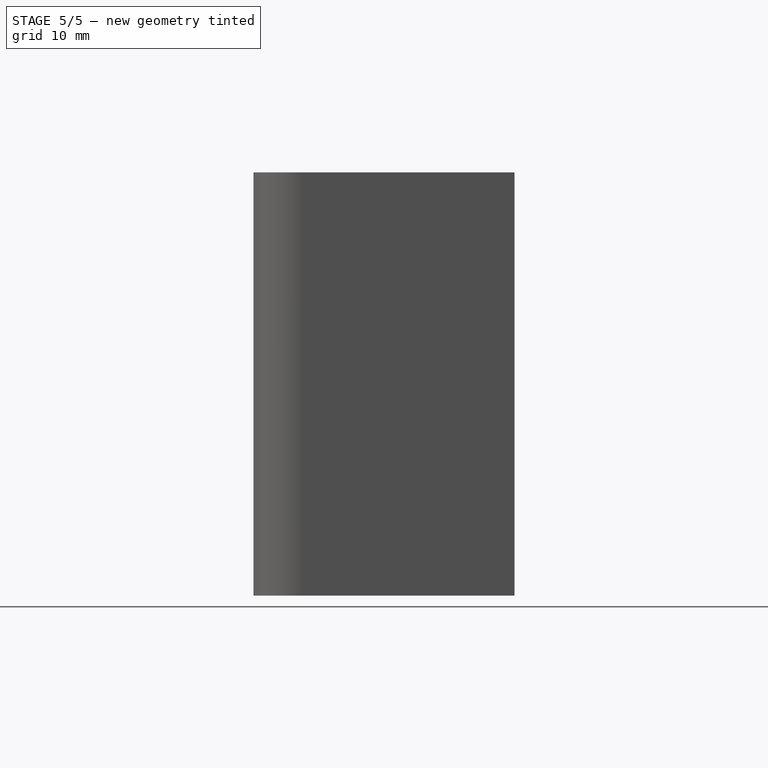
[diagram: stage 5 of 5 — right view after this stage's code; geometry added in this stage tinted green]
FEATURE [PartDesign::Fillet] Fillet006
  Base = -> Fillet005 [Edge52]
  Radius = 3
FEATURE [PartDesign::Fillet] Fillet007
  Base = -> Fillet006 [Edge77]
  Radius = 3
FEATURE [PartDesign::Fillet] Fillet008
  Base = -> Fillet007 [Edge277]
  Radius = 2
FEATURE [PartDesign::Fillet] Fillet009
  Base = -> Fillet008 [Edge27]
  Radius = 2
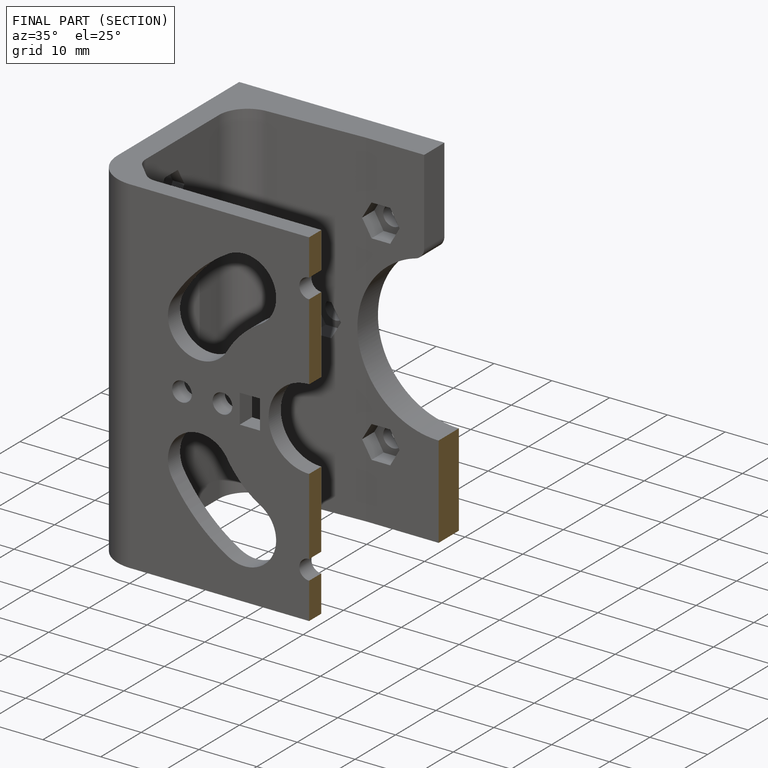
[diagram: finished part — half-section view (interior)]
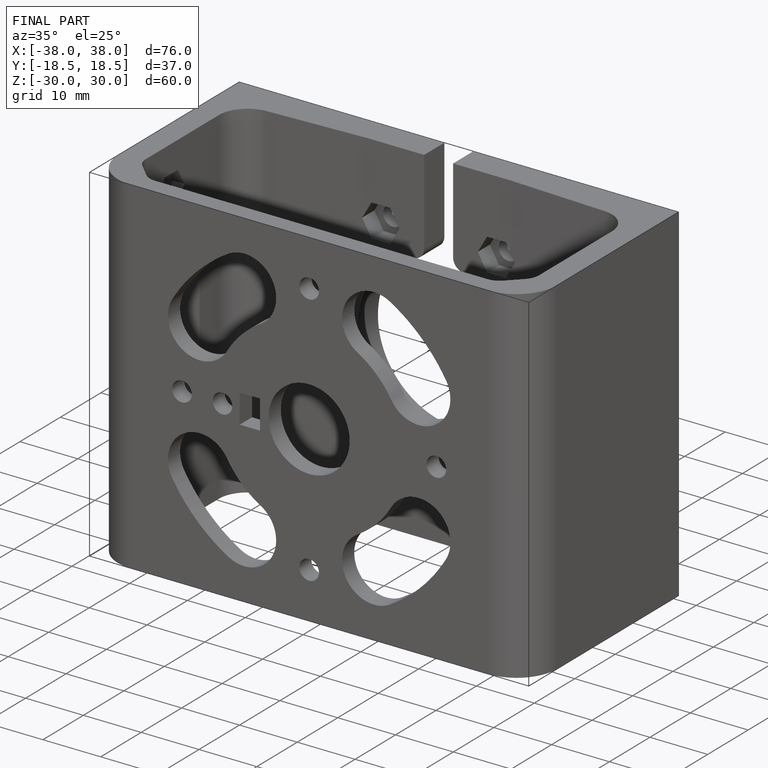
[diagram: finished part — iso view with bounding-box wireframe]
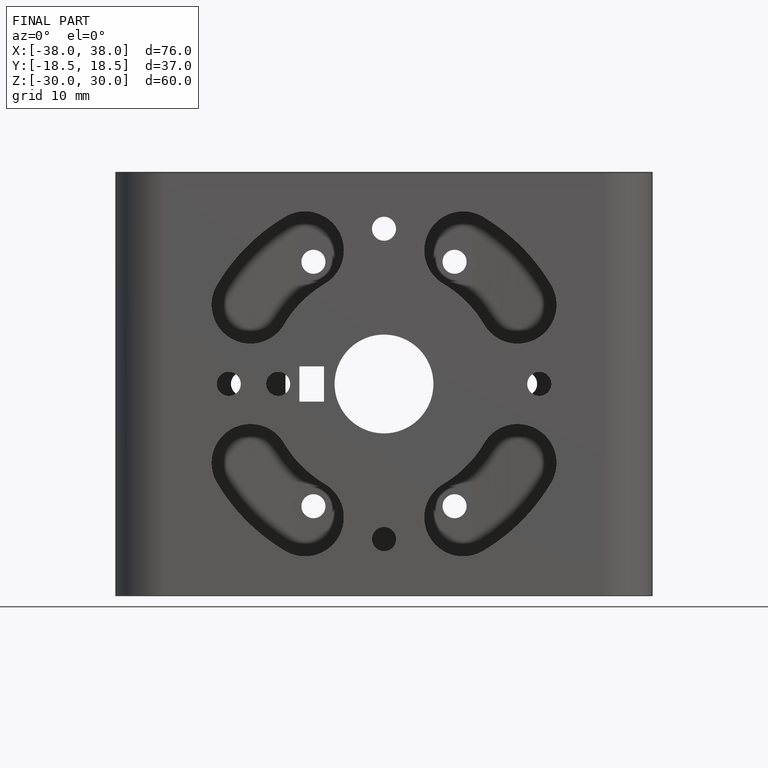
[diagram: finished part — front view with bounding-box wireframe]
